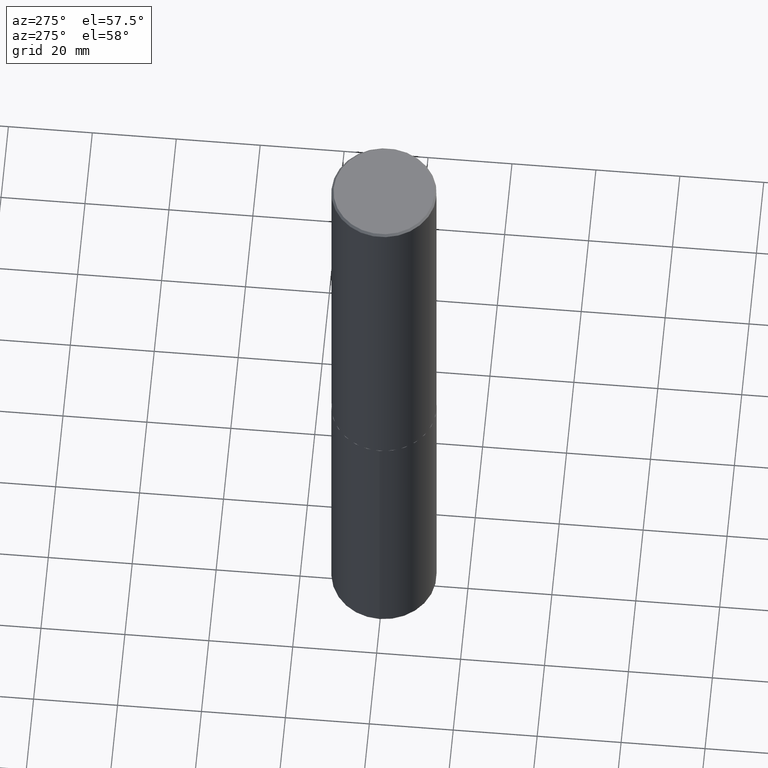
[diagram: clean part render]
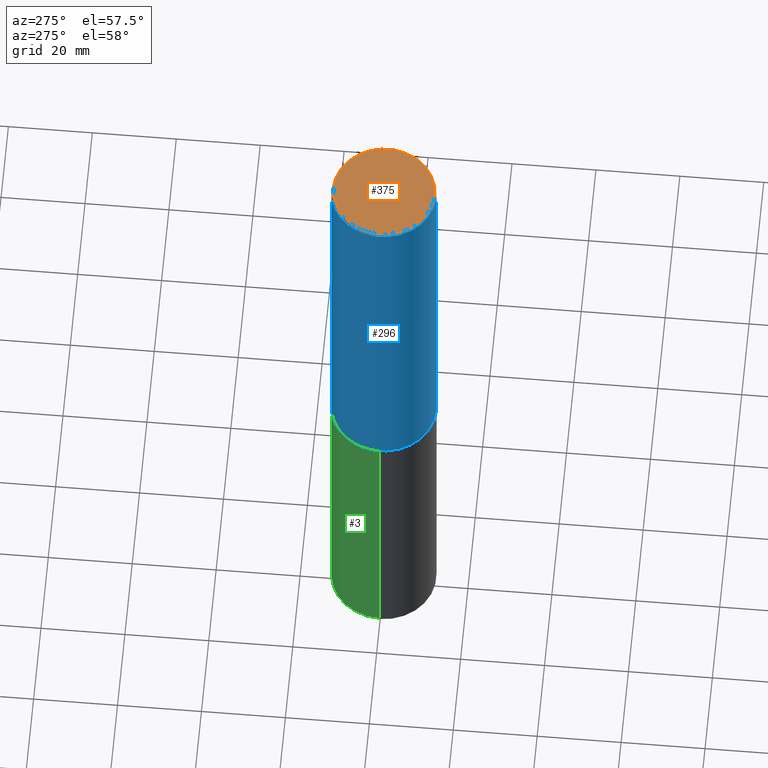
[diagram: same view with three faces highlighted in distinct colors, each labeled with its STEP entity id]
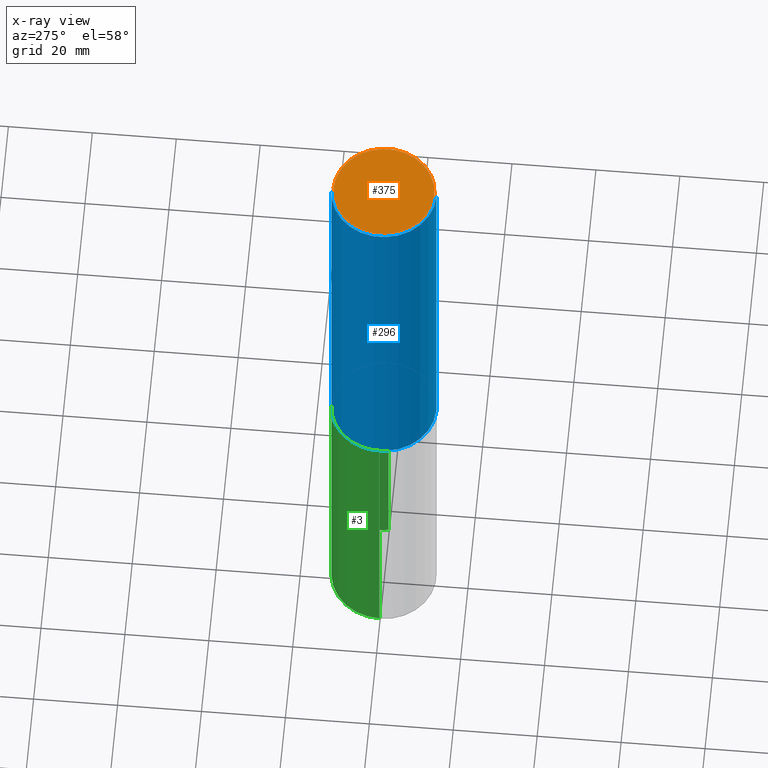
[diagram: x-ray of the same camera — body ghosted, the three highlighted faces saturated]
A machine part, auxiliary view with three faces highlighted in distinct colors.
The next image is the same camera in x-ray (body ghosted, the three faces saturated) — at least one of them is partly hidden behind the body in this view.
Their STEP definitions:

[orange] entity #375 — the highlighted planar face has unit normal (0, -0, -1).
#24 = AXIS2_PLACEMENT_3D ( 'NONE', #122, #369, #85 ) ;
#26 = AXIS2_PLACEMENT_3D ( 'NONE', #92, #350, #33 ) ;
#30 = CARTESIAN_POINT ( 'NONE',  ( 3.366835455046432084E-15, 0.4721499999999996255, -1.426540264649568516E-15 ) ) ;
#33 = DIRECTION ( 'NONE',  ( -6.982962677686265922E-15, -1.000000000000000000, 3.490754157143982946E-15 ) ) ;
#41 = VERTEX_POINT ( 'NONE', #252 ) ;
#85 = DIRECTION ( 'NONE',  ( -6.982962677686265922E-15, -1.000000000000000000, 3.490754157143982946E-15 ) ) ;
#92 = CARTESIAN_POINT ( 'NONE',  ( -5.420756467185317189E-45, 7.736185299407739239E-31, 2.216193106459615290E-16 ) ) ;
#107 = ORIENTED_EDGE ( 'NONE', *, *, #412, .T. ) ;
#122 = CARTESIAN_POINT ( 'NONE',  ( -5.420756467185317189E-45, 7.736185299407739239E-31, 2.216193106459615290E-16 ) ) ;
#135 = EDGE_CURVE ( 'NONE', #357, #41, #207, .T. ) ;
#146 = CIRCLE ( 'NONE', #26, 0.4721499999999996255 ) ;
#163 = DIRECTION ( 'NONE',  ( 6.982962677686265922E-15, 1.000000000000000000, -3.490754157143982552E-15 ) ) ;
#207 = CIRCLE ( 'NONE', #24, 0.4721499999999996255 ) ;
#220 = CARTESIAN_POINT ( 'NONE',  ( 3.297005828269567997E-15, 0.4721499999999996255, -1.537349919972549256E-15 ) ) ;
#252 = CARTESIAN_POINT ( 'NONE',  ( -3.307789109625541747E-15, -0.4721499999999996255, 1.869778885941491673E-15 ) ) ;
#282 = PLANE ( 'NONE',  #294 ) ;
#294 = AXIS2_PLACEMENT_3D ( 'NONE', #220, #315, #163 ) ;
#298 = EDGE_LOOP ( 'NONE', ( #404, #107 ) ) ;
#315 = DIRECTION ( 'NONE',  ( 2.445976594451651392E-29, -3.490754157143982552E-15, -1.000000000000000000 ) ) ;
#320 = FACE_OUTER_BOUND ( 'NONE', #298, .T. ) ;
#350 = DIRECTION ( 'NONE',  ( -2.445976594451651952E-29, 3.490754157143982552E-15, 1.000000000000000000 ) ) ;
#357 = VERTEX_POINT ( 'NONE', #30 ) ;
#369 = DIRECTION ( 'NONE',  ( -2.445976594451651952E-29, 3.490754157143982552E-15, 1.000000000000000000 ) ) ;
#375 = ADVANCED_FACE ( 'NONE', ( #320 ), #282, .F. ) ;
#404 = ORIENTED_EDGE ( 'NONE', *, *, #135, .T. ) ;
#412 = EDGE_CURVE ( 'NONE', #41, #357, #146, .T. ) ;

[blue] entity #296 — the highlighted cylindrical surface (partial cylindrical patch) has radius 12.5006 mm, axis along (-0, 0, 1).
#21 = DIRECTION ( 'NONE',  ( -6.982962677686265922E-15, -1.000000000000000000, 3.330506545156063496E-15 ) ) ;
#23 = VERTEX_POINT ( 'NONE', #371 ) ;
#27 = EDGE_CURVE ( 'NONE', #235, #66, #45, .T. ) ;
#39 = VECTOR ( 'NONE', #86, 39.37007874015748143 ) ;
#45 = CIRCLE ( 'NONE', #199, 0.4921500000000003650 ) ;
#48 = LINE ( 'NONE', #82, #39 ) ;
#56 = DIRECTION ( 'NONE',  ( -2.445976594451651952E-29, 3.490754157143982552E-15, 1.000000000000000000 ) ) ;
#59 = AXIS2_PLACEMENT_3D ( 'NONE', #381, #192, #61 ) ;
#61 = DIRECTION ( 'NONE',  ( -6.982962677686265922E-15, -1.000000000000000000, 3.486624039460257331E-15 ) ) ;
#66 = VERTEX_POINT ( 'NONE', #102 ) ;
#80 = VECTOR ( 'NONE', #95, 39.37007874015748143 ) ;
#82 = CARTESIAN_POINT ( 'NONE',  ( -3.436665081823296565E-15, -0.4921500000000000874, 1.717974658438411319E-15 ) ) ;
#86 = DIRECTION ( 'NONE',  ( -2.445976594451651672E-29, 3.490754157143982552E-15, 1.000000000000000000 ) ) ;
#88 = CARTESIAN_POINT ( 'NONE',  ( 9.145751084314172604E-29, -1.305227886897706845E-14, -3.739100000000000534 ) ) ;
#91 = EDGE_LOOP ( 'NONE', ( #316, #324, #321, #351 ) ) ;
#95 = DIRECTION ( 'NONE',  ( -2.445976594451651672E-29, 3.490754157143982552E-15, 1.000000000000000000 ) ) ;
#102 = CARTESIAN_POINT ( 'NONE',  ( -3.436665081823207030E-15, -0.4921500000000134101, -3.739099999999998758 ) ) ;
#155 = CARTESIAN_POINT ( 'NONE',  ( 3.496936074043380229E-15, 0.4921499999999873198, -3.739100000000002311 ) ) ;
#168 = VERTEX_POINT ( 'NONE', #400 ) ;
#186 = CARTESIAN_POINT ( 'NONE',  ( 3.496936074043333291E-15, 0.4921500000000000874, -1.717974658438411319E-15 ) ) ;
#192 = DIRECTION ( 'NONE',  ( -2.445976594451651952E-29, 3.490754157143982552E-15, 1.000000000000000000 ) ) ;
#199 = AXIS2_PLACEMENT_3D ( 'NONE', #88, #214, #21 ) ;
#202 = EDGE_CURVE ( 'NONE', #66, #168, #48, .T. ) ;
#214 = DIRECTION ( 'NONE',  ( -2.445976594451651952E-29, 3.490754157143982552E-15, 1.000000000000000000 ) ) ;
#215 = CYLINDRICAL_SURFACE ( 'NONE', #240, 0.4921500000000000874 ) ;
#235 = VERTEX_POINT ( 'NONE', #155 ) ;
#240 = AXIS2_PLACEMENT_3D ( 'NONE', #342, #56, #281 ) ;
#246 = FACE_OUTER_BOUND ( 'NONE', #91, .T. ) ;
#281 = DIRECTION ( 'NONE',  ( -6.982962677686265922E-15, -1.000000000000000000, 3.490754157143982552E-15 ) ) ;
#296 = ADVANCED_FACE ( 'NONE', ( #246 ), #215, .T. ) ;
#307 = EDGE_CURVE ( 'NONE', #235, #23, #382, .T. ) ;
#312 = CIRCLE ( 'NONE', #59, 0.4921499999999999209 ) ;
#316 = ORIENTED_EDGE ( 'NONE', *, *, #307, .F. ) ;
#321 = ORIENTED_EDGE ( 'NONE', *, *, #202, .T. ) ;
#324 = ORIENTED_EDGE ( 'NONE', *, *, #27, .T. ) ;
#342 = CARTESIAN_POINT ( 'NONE',  ( 0.000000000000000000, 0.000000000000000000, 0.000000000000000000 ) ) ;
#351 = ORIENTED_EDGE ( 'NONE', *, *, #354, .F. ) ;
#354 = EDGE_CURVE ( 'NONE', #23, #168, #312, .T. ) ;
#371 = CARTESIAN_POINT ( 'NONE',  ( 3.436665081823295777E-15, 0.4921499999999998098, -0.02000000000000182188 ) ) ;
#381 = CARTESIAN_POINT ( 'NONE',  ( 4.891953188903329688E-31, -6.981508314288001687E-17, -0.02000000000000010797 ) ) ;
#382 = LINE ( 'NONE', #186, #80 ) ;
#400 = CARTESIAN_POINT ( 'NONE',  ( -3.376394089603257868E-15, -0.4921499999999999764, -0.01999999999999839059 ) ) ;

[green] entity #3 — the highlighted cylindrical surface (partial cylindrical patch) has radius 12.5006 mm, axis along (-0, 0, 1).
#3 = ADVANCED_FACE ( 'NONE', ( #333 ), #337, .T. ) ;
#5 = VERTEX_POINT ( 'NONE', #120 ) ;
#22 = CARTESIAN_POINT ( 'NONE',  ( -0.4921499999999999764, 3.496936074043332897E-15, -2.420853904668951509E-29 ) ) ;
#55 = EDGE_CURVE ( 'NONE', #5, #378, #239, .T. ) ;
#81 = DIRECTION ( 'NONE',  ( -2.445468806185136597E-29, 3.491481338843145583E-15, 1.000000000000000000 ) ) ;
#83 = DIRECTION ( 'NONE',  ( -2.445468806185136877E-29, 3.491481338843145188E-15, 1.000000000000000000 ) ) ;
#93 = EDGE_LOOP ( 'NONE', ( #148, #113, #365, #355 ) ) ;
#111 = AXIS2_PLACEMENT_3D ( 'NONE', #241, #81, #124 ) ;
#113 = ORIENTED_EDGE ( 'NONE', *, *, #208, .T. ) ;
#120 = CARTESIAN_POINT ( 'NONE',  ( 0.4921500000000002539, -2.666723616981616910E-14, -6.653500000000000192 ) ) ;
#123 = DIRECTION ( 'NONE',  ( 1.000000000000000000, -6.982962677686265922E-15, 0.000000000000000000 ) ) ;
#124 = DIRECTION ( 'NONE',  ( 1.000000000000000000, -6.982962677686265922E-15, 4.876176775795935793E-29 ) ) ;
#145 = VERTEX_POINT ( 'NONE', #212 ) ;
#148 = ORIENTED_EDGE ( 'NONE', *, *, #55, .T. ) ;
#154 = CARTESIAN_POINT ( 'NONE',  ( 0.4921499999999999764, -1.649515443723054663E-14, -3.740100000000000424 ) ) ;
#157 = CARTESIAN_POINT ( 'NONE',  ( 9.146297882013029477E-29, -1.305848935540725085E-14, -3.740100000000000424 ) ) ;
#162 = AXIS2_PLACEMENT_3D ( 'NONE', #284, #413, #286 ) ;
#176 = EDGE_CURVE ( 'NONE', #5, #288, #308, .T. ) ;
#208 = EDGE_CURVE ( 'NONE', #378, #145, #403, .T. ) ;
#212 = CARTESIAN_POINT ( 'NONE',  ( -0.4921499999999999764, -1.464759414765672840E-14, -3.740100000000000424 ) ) ;
#218 = EDGE_CURVE ( 'NONE', #288, #145, #326, .T. ) ;
#239 = CIRCLE ( 'NONE', #162, 0.4921500000000000319 ) ;
#241 = CARTESIAN_POINT ( 'NONE',  ( 0.000000000000000000, 0.000000000000000000, 0.000000000000000000 ) ) ;
#243 = DIRECTION ( 'NONE',  ( -2.445468806185136877E-29, 3.491481338843145188E-15, 1.000000000000000000 ) ) ;
#275 = VECTOR ( 'NONE', #243, 39.37007874015748143 ) ;
#278 = CARTESIAN_POINT ( 'NONE',  ( 0.4921499999999999764, -3.436665081823295777E-15, 2.399810400207969603E-29 ) ) ;
#284 = CARTESIAN_POINT ( 'NONE',  ( 1.627092670195280843E-28, -2.323057108799287175E-14, -6.653500000000000192 ) ) ;
#286 = DIRECTION ( 'NONE',  ( 1.000000000000000000, -6.982962677686265133E-15, 0.000000000000000000 ) ) ;
#288 = VERTEX_POINT ( 'NONE', #154 ) ;
#308 = LINE ( 'NONE', #278, #345 ) ;
#326 = CIRCLE ( 'NONE', #380, 0.4921499999999999764 ) ;
#333 = FACE_OUTER_BOUND ( 'NONE', #93, .T. ) ;
#337 = CYLINDRICAL_SURFACE ( 'NONE', #111, 0.4921499999999999764 ) ;
#345 = VECTOR ( 'NONE', #83, 39.37007874015748143 ) ;
#348 = CARTESIAN_POINT ( 'NONE',  ( -0.4921500000000002539, -1.973363501394954437E-14, -6.653500000000000192 ) ) ;
#355 = ORIENTED_EDGE ( 'NONE', *, *, #176, .F. ) ;
#365 = ORIENTED_EDGE ( 'NONE', *, *, #218, .F. ) ;
#378 = VERTEX_POINT ( 'NONE', #348 ) ;
#380 = AXIS2_PLACEMENT_3D ( 'NONE', #157, #397, #123 ) ;
#397 = DIRECTION ( 'NONE',  ( -2.445468806185136597E-29, 3.491481338843145583E-15, 1.000000000000000000 ) ) ;
#403 = LINE ( 'NONE', #22, #275 ) ;
#413 = DIRECTION ( 'NONE',  ( -2.445468806185136597E-29, 3.491481338843145583E-15, 1.000000000000000000 ) ) ;